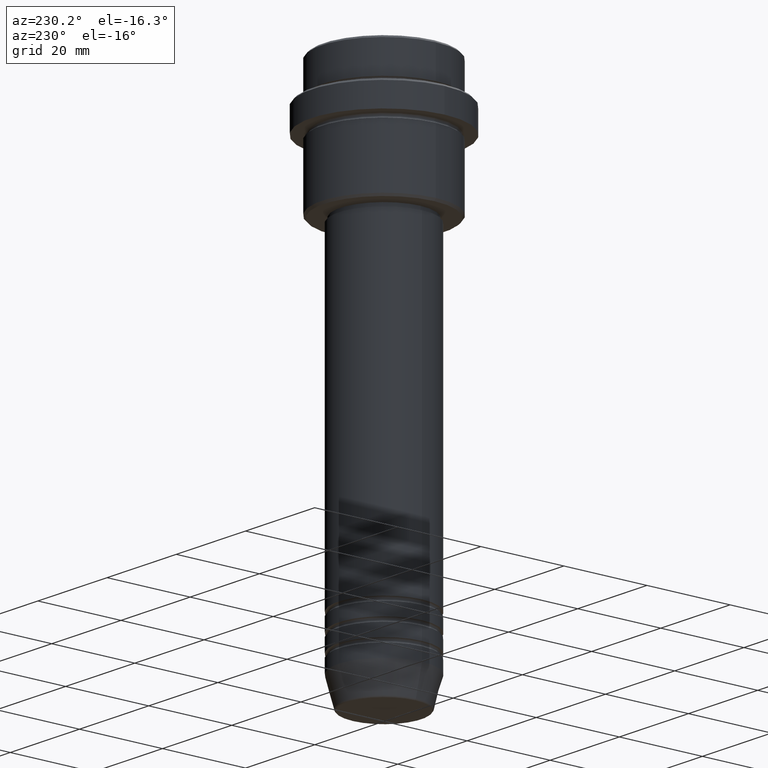
[diagram: clean part render]
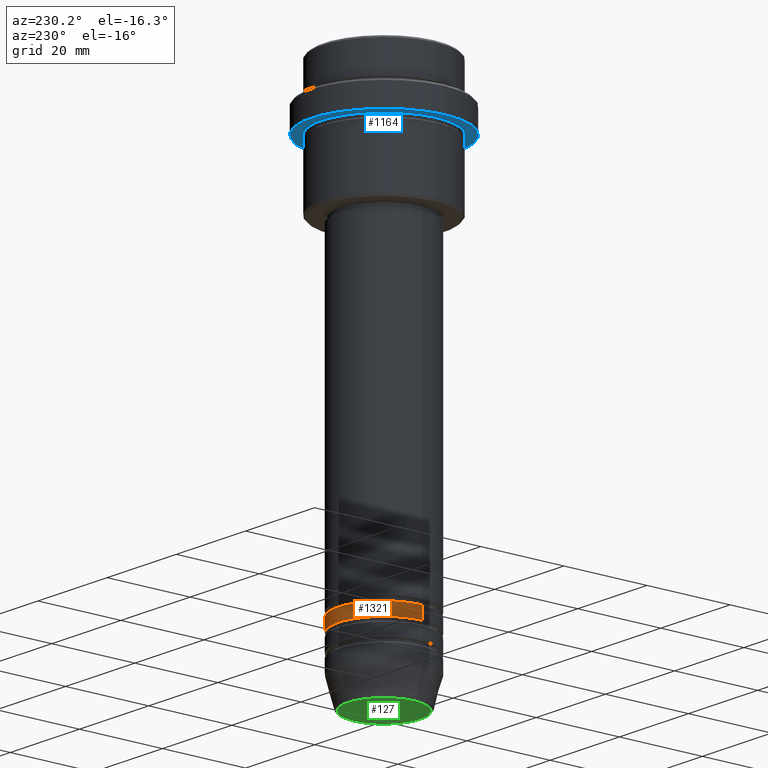
[diagram: same view with three faces highlighted in distinct colors, each labeled with its STEP entity id]
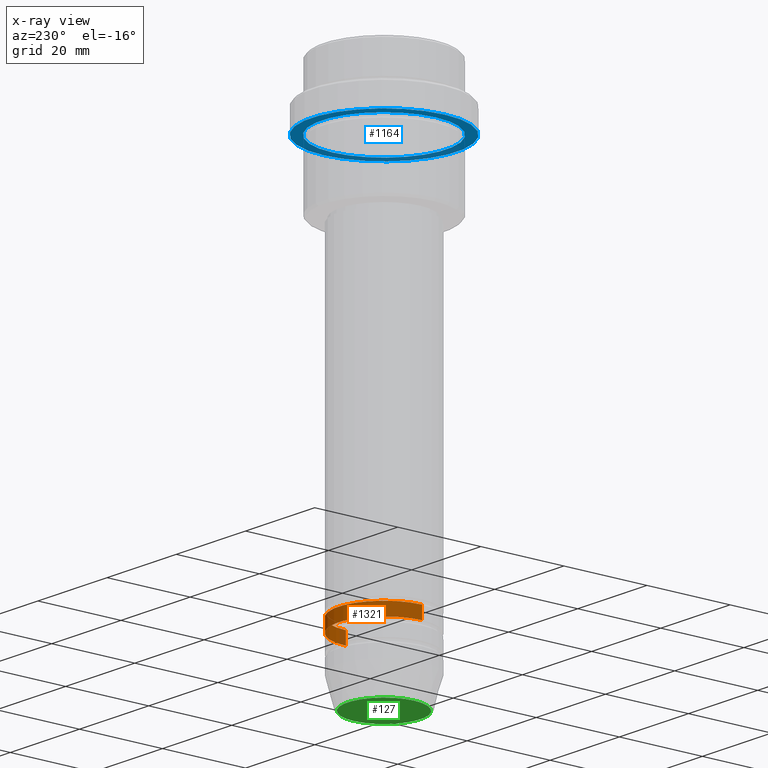
[diagram: x-ray of the same camera — body ghosted, the three highlighted faces saturated]
A machine part, auxiliary view with three faces highlighted in distinct colors.
The next image is the same camera in x-ray (body ghosted, the three faces saturated) — at least one of them is partly hidden behind the body in this view.
Their STEP definitions:

[orange] entity #1321 — the highlighted cylindrical surface (partial cylindrical patch) has radius 11 mm, axis along (-0, -0, 1).
#90 = ORIENTED_EDGE ( 'NONE', *, *, #428, .T. ) ;
#113 = VERTEX_POINT ( 'NONE', #361 ) ;
#254 = LINE ( 'NONE', #688, #382 ) ;
#281 = VERTEX_POINT ( 'NONE', #1156 ) ;
#324 = LINE ( 'NONE', #765, #1176 ) ;
#344 = DIRECTION ( 'NONE',  ( -0.000000000000000000, -0.000000000000000000, 1.000000000000000000 ) ) ;
#354 = DIRECTION ( 'NONE',  ( -0.000000000000000000, -0.000000000000000000, 1.000000000000000000 ) ) ;
#361 = CARTESIAN_POINT ( 'NONE',  ( -11.00000000000000000, 1.347111479062088405E-15, -110.9999999999998721 ) ) ;
#382 = VECTOR ( 'NONE', #1015, 1000.000000000000000 ) ;
#386 = EDGE_CURVE ( 'NONE', #427, #1300, #1154, .T. ) ;
#419 = AXIS2_PLACEMENT_3D ( 'NONE', #1408, #344, #430 ) ;
#427 = VERTEX_POINT ( 'NONE', #531 ) ;
#428 = EDGE_CURVE ( 'NONE', #281, #113, #490, .T. ) ;
#430 = DIRECTION ( 'NONE',  ( 1.000000000000000000, 0.000000000000000000, 0.000000000000000000 ) ) ;
#487 = DIRECTION ( 'NONE',  ( -0.000000000000000000, -0.000000000000000000, 1.000000000000000000 ) ) ;
#490 = CIRCLE ( 'NONE', #419, 11.00000000000000000 ) ;
#531 = CARTESIAN_POINT ( 'NONE',  ( 11.00000000000000000, 0.000000000000000000, -107.9999999999998721 ) ) ;
#564 = ORIENTED_EDGE ( 'NONE', *, *, #386, .F. ) ;
#571 = ORIENTED_EDGE ( 'NONE', *, *, #1335, .F. ) ;
#576 = FACE_OUTER_BOUND ( 'NONE', #1140, .T. ) ;
#634 = ORIENTED_EDGE ( 'NONE', *, *, #1338, .T. ) ;
#675 = DIRECTION ( 'NONE',  ( 1.000000000000000000, 0.000000000000000000, 0.000000000000000000 ) ) ;
#688 = CARTESIAN_POINT ( 'NONE',  ( 11.00000000000000000, 0.000000000000000000, 0.000000000000000000 ) ) ;
#765 = CARTESIAN_POINT ( 'NONE',  ( -11.00000000000000000, 1.347111479062088405E-15, 0.000000000000000000 ) ) ;
#773 = DIRECTION ( 'NONE',  ( -0.000000000000000000, -0.000000000000000000, 1.000000000000000000 ) ) ;
#893 = CARTESIAN_POINT ( 'NONE',  ( 0.000000000000000000, 0.000000000000000000, -107.9999999999998721 ) ) ;
#902 = CYLINDRICAL_SURFACE ( 'NONE', #1053, 11.00000000000000000 ) ;
#1002 = CARTESIAN_POINT ( 'NONE',  ( -11.00000000000000000, 1.347111479062088405E-15, -107.9999999999998721 ) ) ;
#1015 = DIRECTION ( 'NONE',  ( -0.000000000000000000, -0.000000000000000000, 1.000000000000000000 ) ) ;
#1053 = AXIS2_PLACEMENT_3D ( 'NONE', #1330, #354, #1226 ) ;
#1140 = EDGE_LOOP ( 'NONE', ( #90, #634, #564, #571 ) ) ;
#1154 = CIRCLE ( 'NONE', #1332, 11.00000000000000000 ) ;
#1156 = CARTESIAN_POINT ( 'NONE',  ( 11.00000000000000000, 0.000000000000000000, -110.9999999999998721 ) ) ;
#1176 = VECTOR ( 'NONE', #487, 1000.000000000000000 ) ;
#1226 = DIRECTION ( 'NONE',  ( 1.000000000000000000, 0.000000000000000000, 0.000000000000000000 ) ) ;
#1300 = VERTEX_POINT ( 'NONE', #1002 ) ;
#1321 = ADVANCED_FACE ( 'NONE', ( #576 ), #902, .T. ) ;
#1330 = CARTESIAN_POINT ( 'NONE',  ( 0.000000000000000000, 0.000000000000000000, 0.000000000000000000 ) ) ;
#1332 = AXIS2_PLACEMENT_3D ( 'NONE', #893, #773, #675 ) ;
#1335 = EDGE_CURVE ( 'NONE', #281, #427, #254, .T. ) ;
#1338 = EDGE_CURVE ( 'NONE', #113, #1300, #324, .T. ) ;
#1408 = CARTESIAN_POINT ( 'NONE',  ( 0.000000000000000000, 0.000000000000000000, -110.9999999999998721 ) ) ;

[blue] entity #1164 — the highlighted planar face has unit normal (0, 0, -1).
#63 = DIRECTION ( 'NONE',  ( -1.000000000000000000, 0.000000000000000000, -0.000000000000000000 ) ) ;
#64 = DIRECTION ( 'NONE',  ( -0.000000000000000000, -0.000000000000000000, 1.000000000000000000 ) ) ;
#160 = EDGE_CURVE ( 'NONE', #516, #777, #1379, .T. ) ;
#179 = FACE_BOUND ( 'NONE', #546, .T. ) ;
#273 = CARTESIAN_POINT ( 'NONE',  ( 0.000000000000000000, 0.000000000000000000, -15.00000000000000178 ) ) ;
#297 = AXIS2_PLACEMENT_3D ( 'NONE', #934, #717, #1043 ) ;
#307 = ORIENTED_EDGE ( 'NONE', *, *, #978, .F. ) ;
#381 = DIRECTION ( 'NONE',  ( 1.000000000000000000, 0.000000000000000000, 0.000000000000000000 ) ) ;
#406 = AXIS2_PLACEMENT_3D ( 'NONE', #973, #432, #63 ) ;
#421 = DIRECTION ( 'NONE',  ( -1.000000000000000000, 0.000000000000000000, 0.000000000000000000 ) ) ;
#432 = DIRECTION ( 'NONE',  ( 0.000000000000000000, 0.000000000000000000, -1.000000000000000000 ) ) ;
#492 = FACE_OUTER_BOUND ( 'NONE', #774, .T. ) ;
#504 = CARTESIAN_POINT ( 'NONE',  ( 0.000000000000000000, 0.000000000000000000, -15.00000000000000178 ) ) ;
#516 = VERTEX_POINT ( 'NONE', #806 ) ;
#546 = EDGE_LOOP ( 'NONE', ( #599, #670 ) ) ;
#559 = AXIS2_PLACEMENT_3D ( 'NONE', #504, #64, #1388 ) ;
#591 = CARTESIAN_POINT ( 'NONE',  ( 17.50000000000000000, 0.000000000000000000, -15.00000000000000178 ) ) ;
#599 = ORIENTED_EDGE ( 'NONE', *, *, #160, .T. ) ;
#670 = ORIENTED_EDGE ( 'NONE', *, *, #1083, .T. ) ;
#714 = EDGE_CURVE ( 'NONE', #1378, #1119, #1334, .T. ) ;
#717 = DIRECTION ( 'NONE',  ( -0.000000000000000000, -0.000000000000000000, 1.000000000000000000 ) ) ;
#751 = CARTESIAN_POINT ( 'NONE',  ( 0.000000000000000000, 0.000000000000000000, -15.00000000000000000 ) ) ;
#774 = EDGE_LOOP ( 'NONE', ( #1402, #307 ) ) ;
#777 = VERTEX_POINT ( 'NONE', #849 ) ;
#806 = CARTESIAN_POINT ( 'NONE',  ( -14.99999999999999645, 0.000000000000000000, -15.00000000000000000 ) ) ;
#836 = CARTESIAN_POINT ( 'NONE',  ( -17.50000000000000000, 2.143131898507868248E-15, -15.00000000000000178 ) ) ;
#849 = CARTESIAN_POINT ( 'NONE',  ( 14.99999999999999645, 1.836970198721029194E-15, -15.00000000000000000 ) ) ;
#862 = CIRCLE ( 'NONE', #887, 17.50000000000000000 ) ;
#887 = AXIS2_PLACEMENT_3D ( 'NONE', #273, #924, #381 ) ;
#924 = DIRECTION ( 'NONE',  ( -0.000000000000000000, -0.000000000000000000, 1.000000000000000000 ) ) ;
#934 = CARTESIAN_POINT ( 'NONE',  ( 0.000000000000000000, 0.000000000000000000, -15.00000000000000000 ) ) ;
#973 = CARTESIAN_POINT ( 'NONE',  ( 0.000000000000000000, 17.50000000000000000, -15.00000000000000000 ) ) ;
#978 = EDGE_CURVE ( 'NONE', #1119, #1378, #862, .T. ) ;
#1043 = DIRECTION ( 'NONE',  ( -1.000000000000000000, 0.000000000000000000, 0.000000000000000000 ) ) ;
#1059 = DIRECTION ( 'NONE',  ( -0.000000000000000000, -0.000000000000000000, 1.000000000000000000 ) ) ;
#1083 = EDGE_CURVE ( 'NONE', #777, #516, #1222, .T. ) ;
#1119 = VERTEX_POINT ( 'NONE', #836 ) ;
#1134 = AXIS2_PLACEMENT_3D ( 'NONE', #751, #1059, #421 ) ;
#1164 = ADVANCED_FACE ( 'NONE', ( #179, #492 ), #1403, .T. ) ;
#1222 = CIRCLE ( 'NONE', #297, 14.99999999999999645 ) ;
#1334 = CIRCLE ( 'NONE', #559, 17.50000000000000000 ) ;
#1378 = VERTEX_POINT ( 'NONE', #591 ) ;
#1379 = CIRCLE ( 'NONE', #1134, 14.99999999999999645 ) ;
#1388 = DIRECTION ( 'NONE',  ( 1.000000000000000000, 0.000000000000000000, 0.000000000000000000 ) ) ;
#1402 = ORIENTED_EDGE ( 'NONE', *, *, #714, .F. ) ;
#1403 = PLANE ( 'NONE',  #406 ) ;

[green] entity #127 — the highlighted planar face has unit normal (0, -0, 1).
#3 = VERTEX_POINT ( 'NONE', #664 ) ;
#14 = DIRECTION ( 'NONE',  ( 1.000000000000000000, 0.000000000000000000, 0.000000000000000000 ) ) ;
#51 = AXIS2_PLACEMENT_3D ( 'NONE', #1200, #241, #14 ) ;
#127 = ADVANCED_FACE ( 'NONE', ( #828 ), #261, .F. ) ;
#231 = ORIENTED_EDGE ( 'NONE', *, *, #514, .T. ) ;
#241 = DIRECTION ( 'NONE',  ( 0.000000000000000000, 0.000000000000000000, -1.000000000000000000 ) ) ;
#261 = PLANE ( 'NONE',  #816 ) ;
#266 = DIRECTION ( 'NONE',  ( 0.000000000000000000, -0.000000000000000000, 1.000000000000000000 ) ) ;
#322 = EDGE_CURVE ( 'NONE', #890, #3, #399, .T. ) ;
#399 = CIRCLE ( 'NONE', #51, 8.740692158992652949 ) ;
#481 = DIRECTION ( 'NONE',  ( 1.000000000000000000, 0.000000000000000000, 0.000000000000000000 ) ) ;
#514 = EDGE_CURVE ( 'NONE', #3, #890, #1219, .T. ) ;
#540 = ORIENTED_EDGE ( 'NONE', *, *, #322, .T. ) ;
#601 = CARTESIAN_POINT ( 'NONE',  ( 0.000000000000000000, 0.000000000000000000, -126.0000000000000000 ) ) ;
#664 = CARTESIAN_POINT ( 'NONE',  ( 8.740692158992652949, 0.000000000000000000, -126.0000000000000000 ) ) ;
#787 = CARTESIAN_POINT ( 'NONE',  ( -8.740692158992652949, 1.099999016768739259E-15, -126.0000000000000000 ) ) ;
#813 = CARTESIAN_POINT ( 'NONE',  ( 0.000000000000000000, 0.000000000000000000, -126.0000000000000000 ) ) ;
#816 = AXIS2_PLACEMENT_3D ( 'NONE', #813, #266, #928 ) ;
#828 = FACE_OUTER_BOUND ( 'NONE', #1245, .T. ) ;
#890 = VERTEX_POINT ( 'NONE', #787 ) ;
#928 = DIRECTION ( 'NONE',  ( 1.000000000000000000, 0.000000000000000000, 0.000000000000000000 ) ) ;
#1200 = CARTESIAN_POINT ( 'NONE',  ( 0.000000000000000000, 0.000000000000000000, -126.0000000000000000 ) ) ;
#1219 = CIRCLE ( 'NONE', #1242, 8.740692158992652949 ) ;
#1242 = AXIS2_PLACEMENT_3D ( 'NONE', #601, #1364, #481 ) ;
#1245 = EDGE_LOOP ( 'NONE', ( #231, #540 ) ) ;
#1364 = DIRECTION ( 'NONE',  ( 0.000000000000000000, 0.000000000000000000, -1.000000000000000000 ) ) ;